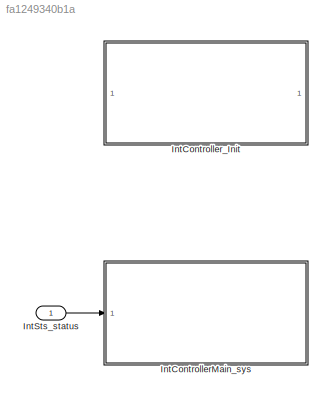
MODEL slx_fa1249340b1a
KIND model
CONFIG AbsTol = auto
CONFIG EnableMultiTasking = off
CONFIG FixedStep = 0.01
CONFIG MaxStep = auto
CONFIG MinStep = auto
CONFIG RelTol = 1e-3
CONFIG SampleTimeConstraint = Unconstrained
CONFIG Solver = FixedStepDiscrete
CONFIG SolverName = FixedStepDiscrete
CONFIG StartTime = 0.0
CONFIG StopTime = 10.0
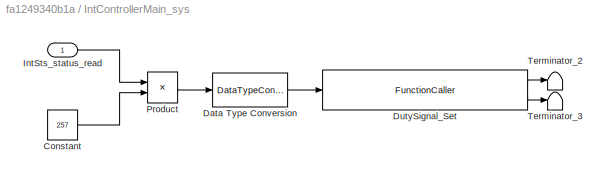
BLOCK [SubSystem] IntControllerMain_sys
  Ports = [1]
  RequestExecContextInheritance = off
  SystemSampleTime = 0.01
  TreatAsAtomicUnit = on
BLOCK [Constant] IntControllerMain_sys/Constant
  Value = 257
BLOCK [DataTypeConversion] IntControllerMain_sys/Data Type Conversion
  RndMeth = Floor
  SaturateOnIntegerOverflow = off
BLOCK [FunctionCaller] IntControllerMain_sys/DutySignal_Set
  FunctionPrototype = [Quality,ERR] = DutySignal_Set(DutyValue)
  InputArgumentSpecifications = P_DutyCycle
  OutputArgumentSpecifications = SignalQuality(0), P_Std_ReturnType
  Ports = [1, 2]
BLOCK [Inport] IntControllerMain_sys/IntSts_status_read
  IconDisplay = Port number
BLOCK [Product] IntControllerMain_sys/Product
  InputSameDT = off
  OutDataTypeStr = Inherit: Inherit via internal rule
  Ports = [2, 1]
  RndMeth = Floor
  SaturateOnIntegerOverflow = off
BLOCK [Terminator] IntControllerMain_sys/Terminator_2
BLOCK [Terminator] IntControllerMain_sys/Terminator_3
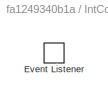
BLOCK [SubSystem] IntController_Init
  Ports = []
  RequestExecContextInheritance = off
BLOCK [EventListener] IntController_Init/Event Listener
  EventName = reset
BLOCK [Inport] IntSts_status
  IconDisplay = Port number
  OutDataTypeStr = IntensityStatus
  PortDimensions = 1
  SamplingMode = Sample based
  SignalType = real
LINE IntControllerMain_sys/Constant:1 -> IntControllerMain_sys/Product:2
LINE IntControllerMain_sys/Data Type Conversion:1 -> IntControllerMain_sys/DutySignal_Set:1
LINE IntControllerMain_sys/DutySignal_Set:1 -> IntControllerMain_sys/Terminator_2:1
LINE IntControllerMain_sys/DutySignal_Set:2 -> IntControllerMain_sys/Terminator_3:1
LINE IntControllerMain_sys/IntSts_status_read:1 -> IntControllerMain_sys/Product:1
LINE IntControllerMain_sys/Product:1 -> IntControllerMain_sys/Data Type Conversion:1
LINE IntSts_status:1 -> IntControllerMain_sys:1
